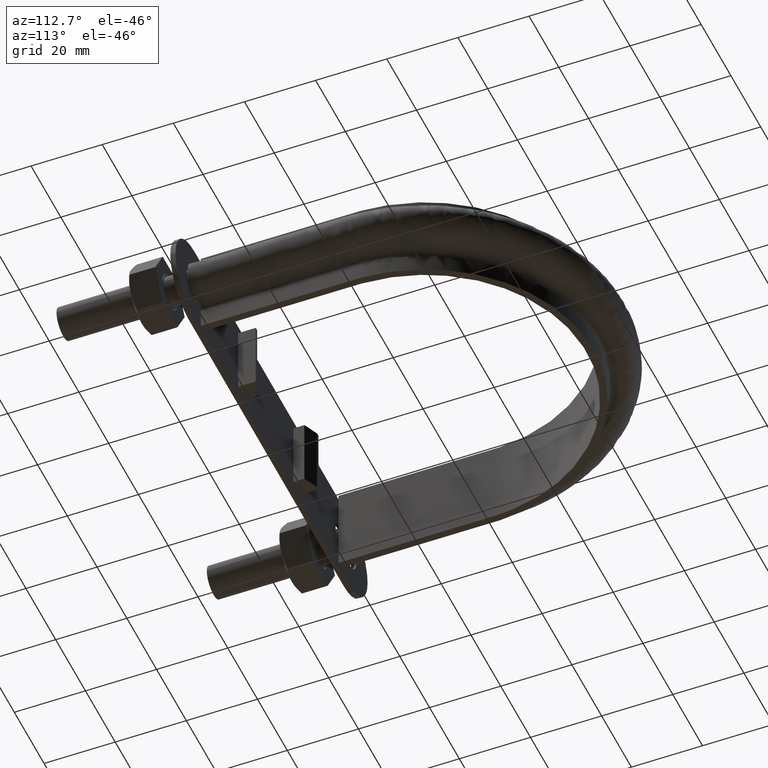
[diagram: clean part render]
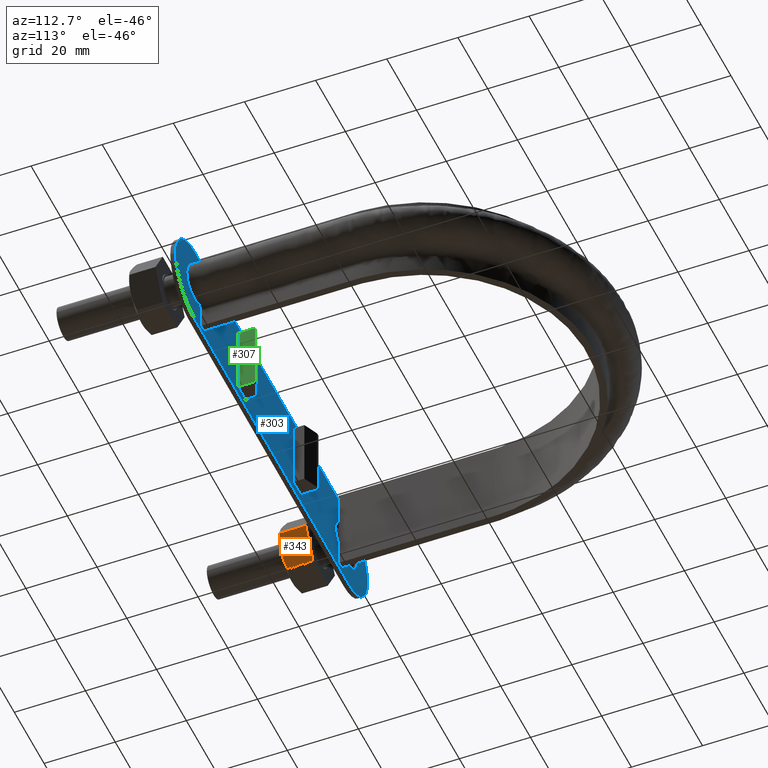
[diagram: same view with three faces highlighted in distinct colors, each labeled with its STEP entity id]
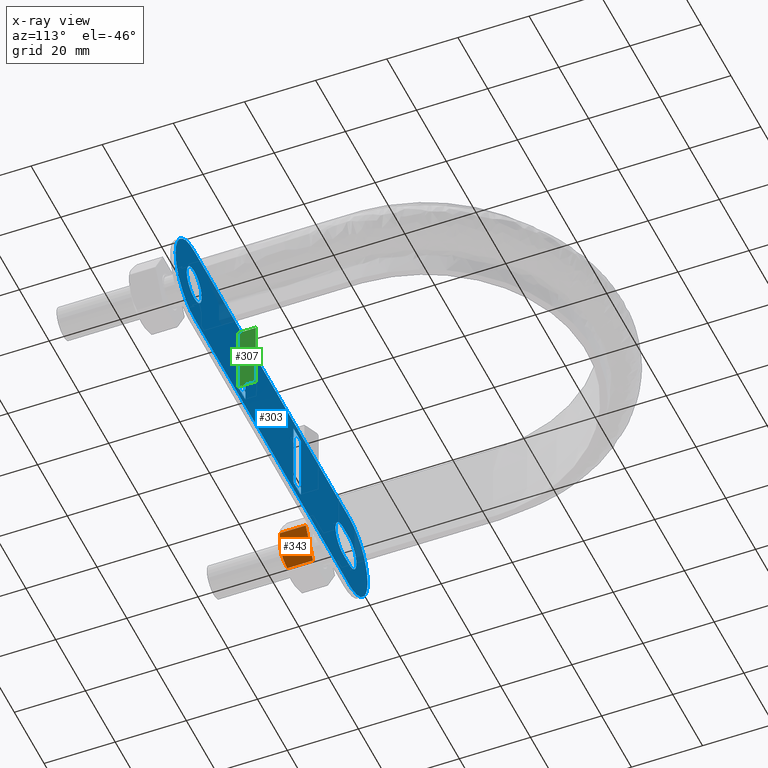
[diagram: x-ray of the same camera — body ghosted, the three highlighted faces saturated]
A machine part, auxiliary view with three faces highlighted in distinct colors.
The next image is the same camera in x-ray (body ghosted, the three faces saturated) — at least one of them is partly hidden behind the body in this view.
Their STEP definitions:

[orange] entity #343 — the highlighted planar face has unit normal (-0.866, 0, 0.5).
#343 = ADVANCED_FACE( '', ( #556 ), #557, .F. );
#556 = FACE_OUTER_BOUND( '', #1627, .T. );
#557 = PLANE( '', #1628 );
#1627 = EDGE_LOOP( '', ( #2265, #2266, #2267, #2268, #2269 ) );
#1628 = AXIS2_PLACEMENT_3D( '', #2270, #2271, #2272 );
#2265 = ORIENTED_EDGE( '', *, *, #2707, .F. );
#2266 = ORIENTED_EDGE( '', *, *, #2702, .F. );
#2267 = ORIENTED_EDGE( '', *, *, #2708, .F. );
#2268 = ORIENTED_EDGE( '', *, *, #2694, .F. );
#2269 = ORIENTED_EDGE( '', *, *, #2709, .F. );
#2270 = CARTESIAN_POINT( '', ( -40.6850454237767, 30.0000000000000, -5.75505631564511E-010 ) );
#2271 = DIRECTION( '', ( -0.866025403755121, 1.81492883553353E-016, 0.500000000050780 ) );
#2272 = DIRECTION( '', ( 0.500000000050780, -1.75487645995180E-016, 0.866025403755121 ) );
#2694 = EDGE_CURVE( '', #3044, #3046, #3047, .T. );
#2702 = EDGE_CURVE( '', #3058, #3007, #3060, .T. );
#2707 = EDGE_CURVE( '', #3007, #3065, #3066, .T. );
#2708 = EDGE_CURVE( '', #3046, #3058, #3067, .F. );
#2709 = EDGE_CURVE( '', #3065, #3044, #3068, .T. );
#3007 = VERTEX_POINT( '', #3743 );
#3044 = VERTEX_POINT( '', #3798 );
#3046 = VERTEX_POINT( '', #3800 );
#3047 = LINE( '', #3801, #3802 );
#3058 = VERTEX_POINT( '', #3823 );
#3060 = B_SPLINE_CURVE_WITH_KNOTS( '', 3, ( #3825, #3826, #3827, #3828, #3829, #3830 ), .UNSPECIFIED., .F., .F., ( 4, 2, 4 ), ( 4.83064900409132E-007, 0.00246777364959049, 0.00493506423428057 ), .UNSPECIFIED. );
#3065 = VERTEX_POINT( '', #3847 );
#3066 = B_SPLINE_CURVE_WITH_KNOTS( '', 3, ( #3848, #3849, #3850, #3851, #3852, #3853, #3854, #3855 ), .UNSPECIFIED., .F., .F., ( 4, 2, 2, 4 ), ( 0.00493506423428057, 0.00616384870526269, 0.00739263317624481, 0.00985020211820904 ), .UNSPECIFIED. );
#3067 = LINE( '', #3856, #3857 );
#3068 = LINE( '', #3858, #3859 );
#3743 = CARTESIAN_POINT( '', ( -43.1387840680822, 22.0000000000010, -4.25000000043123 ) );
#3798 = CARTESIAN_POINT( '', ( -40.7000343881827, 30.0000000000000, -0.0259616484760055 ) );
#3800 = CARTESIAN_POINT( '', ( -45.5775337479817, 30.0000000000000, -8.47403835238645 ) );
#3801 = CARTESIAN_POINT( '', ( -45.5887840683314, 30.0000000000000, -8.49352447883092 ) );
#3802 = VECTOR( '', #4304, 1000.00000000005 );
#3823 = CARTESIAN_POINT( '', ( -45.5775337479817, 22.7505553499474, -8.47403835238645 ) );
#3825 = CARTESIAN_POINT( '', ( -45.5775337479807, 22.7505553499478, -8.47403835238694 ) );
#3826 = CARTESIAN_POINT( '', ( -45.1784813836594, 22.5212203171290, -7.78285938259543 ) );
#3827 = CARTESIAN_POINT( '', ( -44.7765469153766, 22.3324525365453, -7.08668846231079 ) );
#3828 = CARTESIAN_POINT( '', ( -43.9644013768935, 22.0714148540599, -5.68001112670813 ) );
#3829 = CARTESIAN_POINT( '', ( -43.5541295597448, 22.0000000000013, -4.96939949458919 ) );
#3830 = CARTESIAN_POINT( '', ( -43.1387840680817, 22.0000000000013, -4.25000000043147 ) );
#3847 = CARTESIAN_POINT( '', ( -40.7000343881827, 22.7505553499474, -0.0259616484760059 ) );
#3848 = CARTESIAN_POINT( '', ( -43.1387840680817, 22.0000000000013, -4.25000000043147 ) );
#3849 = CARTESIAN_POINT( '', ( -42.9319295964540, 22.0000000000013, -3.89171754584802 ) );
#3850 = CARTESIAN_POINT( '', ( -42.7240406053259, 22.0177112081776, -3.53164325092864 ) );
#3851 = CARTESIAN_POINT( '', ( -42.3127840794867, 22.0863021936225, -2.81932605332737 ) );
#3852 = CARTESIAN_POINT( '', ( -42.1085229010856, 22.1371116504207, -2.46553531437069 ) );
#3853 = CARTESIAN_POINT( '', ( -41.4993495050818, 22.3331494013925, -1.41041604201564 ) );
#3854 = CARTESIAN_POINT( '', ( -41.0980340353299, 22.5218253127368, -0.715317258636198 ) );
#3855 = CARTESIAN_POINT( '', ( -40.7000343881827, 22.7505553499478, -0.0259616484760586 ) );
#3856 = CARTESIAN_POINT( '', ( -45.5775337479817, 30.0000000000000, -8.47403835238645 ) );
#3857 = VECTOR( '', #4319, 999.999999999958 );
#3858 = CARTESIAN_POINT( '', ( -40.7000343881827, 30.0000000000000, -0.0259616484760072 ) );
#3859 = VECTOR( '', #4320, 999.999999999958 );
#4304 = DIRECTION( '', ( -0.500000000050875, 1.75487645995200E-016, -0.866025403755066 ) );
#4319 = DIRECTION( '', ( 2.44921270764475E-016, 1.00000000000000, 6.12303176911189E-017 ) );
#4320 = DIRECTION( '', ( 2.44921270764475E-016, 1.00000000000000, 6.12303176911189E-017 ) );

[blue] entity #303 — the highlighted planar face has unit normal (-0, 1, -0).
#303 = ADVANCED_FACE( '', ( #467, #468, #469, #470, #471 ), #472, .T. );
#467 = FACE_BOUND( '', #1538, .T. );
#468 = FACE_OUTER_BOUND( '', #1539, .T. );
#469 = FACE_BOUND( '', #1540, .T. );
#470 = FACE_BOUND( '', #1541, .T. );
#471 = FACE_BOUND( '', #1542, .T. );
#472 = PLANE( '', #1543 );
#1538 = EDGE_LOOP( '', ( #1957, #1958, #1959, #1960 ) );
#1539 = EDGE_LOOP( '', ( #1961, #1962, #1963, #1964, #1965, #1966 ) );
#1540 = EDGE_LOOP( '', ( #1967 ) );
#1541 = EDGE_LOOP( '', ( #1968, #1969, #1970, #1971 ) );
#1542 = EDGE_LOOP( '', ( #1972, #1973, #1974, #1975 ) );
#1543 = AXIS2_PLACEMENT_3D( '', #1976, #1977, #1978 );
#1957 = ORIENTED_EDGE( '', *, *, #2613, .T. );
#1958 = ORIENTED_EDGE( '', *, *, #2614, .T. );
#1959 = ORIENTED_EDGE( '', *, *, #2615, .F. );
#1960 = ORIENTED_EDGE( '', *, *, #2616, .F. );
#1961 = ORIENTED_EDGE( '', *, *, #2600, .T. );
#1962 = ORIENTED_EDGE( '', *, *, #2617, .T. );
#1963 = ORIENTED_EDGE( '', *, *, #2618, .T. );
#1964 = ORIENTED_EDGE( '', *, *, #2619, .T. );
#1965 = ORIENTED_EDGE( '', *, *, #2620, .T. );
#1966 = ORIENTED_EDGE( '', *, *, #2621, .T. );
#1967 = ORIENTED_EDGE( '', *, *, #2622, .F. );
#1968 = ORIENTED_EDGE( '', *, *, #2623, .F. );
#1969 = ORIENTED_EDGE( '', *, *, #2610, .F. );
#1970 = ORIENTED_EDGE( '', *, *, #2624, .F. );
#1971 = ORIENTED_EDGE( '', *, *, #2625, .F. );
#1972 = ORIENTED_EDGE( '', *, *, #2626, .F. );
#1973 = ORIENTED_EDGE( '', *, *, #2627, .T. );
#1974 = ORIENTED_EDGE( '', *, *, #2628, .T. );
#1975 = ORIENTED_EDGE( '', *, *, #2629, .F. );
#1976 = CARTESIAN_POINT( '', ( -53.5000000000000, 36.7999999999975, 3.14283640215862E-009 ) );
#1977 = DIRECTION( '', ( -4.70212120677648E-014, 1.00000000000000, -6.03659968900138E-014 ) );
#1978 = DIRECTION( '', ( 5.87450643685463E-011, 6.03659968927761E-014, 1.00000000000000 ) );
#2600 = EDGE_CURVE( '', #2889, #2890, #2891, .T. );
#2610 = EDGE_CURVE( '', #2905, #2906, #2907, .T. );
#2613 = EDGE_CURVE( '', #2910, #2911, #2912, .T. );
#2614 = EDGE_CURVE( '', #2911, #2913, #2914, .T. );
#2615 = EDGE_CURVE( '', #2915, #2913, #2916, .T. );
#2616 = EDGE_CURVE( '', #2910, #2915, #2917, .T. );
#2617 = EDGE_CURVE( '', #2890, #2918, #2919, .T. );
#2618 = EDGE_CURVE( '', #2918, #2920, #2921, .T. );
#2619 = EDGE_CURVE( '', #2920, #2922, #2923, .T. );
#2620 = EDGE_CURVE( '', #2922, #2924, #2925, .T. );
#2621 = EDGE_CURVE( '', #2924, #2889, #2926, .T. );
#2622 = EDGE_CURVE( '', #2927, #2927, #2928, .T. );
#2623 = EDGE_CURVE( '', #2906, #2929, #2930, .F. );
#2624 = EDGE_CURVE( '', #2931, #2905, #2932, .F. );
#2625 = EDGE_CURVE( '', #2929, #2931, #2933, .T. );
#2626 = EDGE_CURVE( '', #2934, #2935, #2936, .T. );
#2627 = EDGE_CURVE( '', #2934, #2937, #2938, .T. );
#2628 = EDGE_CURVE( '', #2937, #2939, #2940, .T. );
#2629 = EDGE_CURVE( '', #2935, #2939, #2941, .T. );
#2889 = VERTEX_POINT( '', #3553 );
#2890 = VERTEX_POINT( '', #3554 );
#2891 = CIRCLE( '', #3555, 12.5000000000000 );
#2905 = VERTEX_POINT( '', #3578 );
#2906 = VERTEX_POINT( '', #3579 );
#2907 = LINE( '', #3580, #3581 );
#2910 = VERTEX_POINT( '', #3586 );
#2911 = VERTEX_POINT( '', #3587 );
#2912 = LINE( '', #3588, #3589 );
#2913 = VERTEX_POINT( '', #3590 );
#2914 = LINE( '', #3591, #3592 );
#2915 = VERTEX_POINT( '', #3593 );
#2916 = LINE( '', #3594, #3595 );
#2917 = LINE( '', #3596, #3597 );
#2918 = VERTEX_POINT( '', #3598 );
#2919 = LINE( '', #3599, #3600 );
#2920 = VERTEX_POINT( '', #3601 );
#2921 = CIRCLE( '', #3602, 12.5000000000000 );
#2922 = VERTEX_POINT( '', #3603 );
#2923 = CIRCLE( '', #3604, 12.5000000000000 );
#2924 = VERTEX_POINT( '', #3605 );
#2925 = LINE( '', #3606, #3607 );
#2926 = CIRCLE( '', #3608, 12.5000000000000 );
#2927 = VERTEX_POINT( '', #3609 );
#2928 = CIRCLE( '', #3610, 5.00000000000000 );
#2929 = VERTEX_POINT( '', #3611 );
#2930 = CIRCLE( '', #3612, 5.00000000000000 );
#2931 = VERTEX_POINT( '', #3613 );
#2932 = CIRCLE( '', #3614, 5.00000000000000 );
#2933 = LINE( '', #3615, #3616 );
#2934 = VERTEX_POINT( '', #3617 );
#2935 = VERTEX_POINT( '', #3618 );
#2936 = LINE( '', #3619, #3620 );
#2937 = VERTEX_POINT( '', #3621 );
#2938 = LINE( '', #3622, #3623 );
#2939 = VERTEX_POINT( '', #3624 );
#2940 = LINE( '', #3625, #3626 );
#2941 = LINE( '', #3627, #3628 );
#3553 = CARTESIAN_POINT( '', ( -66.0000000000000, 36.7999999999969, 3.87715317621240E-009 ) );
#3554 = CARTESIAN_POINT( '', ( -53.4999999992657, 36.7999999999983, 12.5000000031428 ) );
#3555 = AXIS2_PLACEMENT_3D( '', #4166, #4167, #4168 );
#3578 = CARTESIAN_POINT( '', ( -49.5000000002938, 36.7999999999974, -4.99999999709215 ) );
#3579 = CARTESIAN_POINT( '', ( -53.5000000002938, 36.7999999999972, -4.99999999685717 ) );
#3580 = CARTESIAN_POINT( '', ( -53.5000000002938, 36.7999999999972, -4.99999999685717 ) );
#3581 = VECTOR( '', #4178, 1000.00000000000 );
#3586 = CARTESIAN_POINT( '', ( -21.1000000005873, 36.7999999999984, -9.99999999876051 ) );
#3587 = CARTESIAN_POINT( '', ( -16.1000000005872, 36.7999999999987, -9.99999999905423 ) );
#3588 = CARTESIAN_POINT( '', ( -21.1000000005873, 36.7999999999984, -9.99999999876051 ) );
#3589 = VECTOR( '', #4181, 1000.00000000000 );
#3590 = CARTESIAN_POINT( '', ( -16.0999999994123, 36.7999999999999, 10.0000000009458 ) );
#3591 = CARTESIAN_POINT( '', ( -16.1000000005872, 36.7999999999987, -9.99999999905423 ) );
#3592 = VECTOR( '', #4182, 1000.00000000000 );
#3593 = CARTESIAN_POINT( '', ( -21.0999999994124, 36.7999999999996, 10.0000000012395 ) );
#3594 = CARTESIAN_POINT( '', ( -21.0999999994124, 36.7999999999996, 10.0000000012395 ) );
#3595 = VECTOR( '', #4183, 1000.00000000000 );
#3596 = CARTESIAN_POINT( '', ( -21.1000000005873, 36.7999999999984, -9.99999999876051 ) );
#3597 = VECTOR( '', #4184, 1000.00000000000 );
#3598 = CARTESIAN_POINT( '', ( 50.5000000007343, 36.8000000000032, 12.4999999970333 ) );
#3599 = CARTESIAN_POINT( '', ( -53.4999999992657, 36.7999999999983, 12.5000000031428 ) );
#3600 = VECTOR( '', #4185, 1000.00000000000 );
#3601 = CARTESIAN_POINT( '', ( 63.0000000000000, 36.8000000000030, -3.70096359677702E-009 ) );
#3602 = AXIS2_PLACEMENT_3D( '', #4186, #4187, #4188 );
#3603 = CARTESIAN_POINT( '', ( 50.4999999992657, 36.8000000000016, -12.5000000029666 ) );
#3604 = AXIS2_PLACEMENT_3D( '', #4189, #4190, #4191 );
#3605 = CARTESIAN_POINT( '', ( -53.5000000007343, 36.7999999999968, -12.4999999968572 ) );
#3606 = CARTESIAN_POINT( '', ( 50.4999999992657, 36.8000000000016, -12.5000000029666 ) );
#3607 = VECTOR( '', #4192, 1000.00000000000 );
#3608 = AXIS2_PLACEMENT_3D( '', #4193, #4194, #4195 );
#3609 = CARTESIAN_POINT( '', ( 55.5000000000000, 36.8000100000026, -3.26038255351049E-009 ) );
#3610 = AXIS2_PLACEMENT_3D( '', #4196, #4197, #4198 );
#3611 = CARTESIAN_POINT( '', ( -53.4999999997063, 36.7999999999978, 5.00000000314282 ) );
#3612 = AXIS2_PLACEMENT_3D( '', #4199, #4200, #4201 );
#3613 = CARTESIAN_POINT( '', ( -49.4999999997063, 36.7999999999980, 5.00000000290784 ) );
#3614 = AXIS2_PLACEMENT_3D( '', #4202, #4203, #4204 );
#3615 = CARTESIAN_POINT( '', ( -49.4999999997063, 36.7999999999980, 5.00000000290784 ) );
#3616 = VECTOR( '', #4205, 1000.00000000000 );
#3617 = CARTESIAN_POINT( '', ( 16.0999999994131, 36.8000000000002, -10.0000000009458 ) );
#3618 = CARTESIAN_POINT( '', ( 16.1000000005880, 36.8000000000014, 9.99999999905417 ) );
#3619 = CARTESIAN_POINT( '', ( 16.0999999994131, 36.8000000000002, -10.0000000009458 ) );
#3620 = VECTOR( '', #4206, 1000.00000000000 );
#3621 = CARTESIAN_POINT( '', ( 21.0999999994131, 36.8000000000004, -10.0000000012396 ) );
#3622 = CARTESIAN_POINT( '', ( 16.0999999994130, 36.8000000000002, -10.0000000009458 ) );
#3623 = VECTOR( '', #4207, 1000.00000000000 );
#3624 = CARTESIAN_POINT( '', ( 21.1000000005880, 36.8000000000016, 9.99999999876045 ) );
#3625 = CARTESIAN_POINT( '', ( 21.0999999994131, 36.8000000000004, -10.0000000012396 ) );
#3626 = VECTOR( '', #4208, 1000.00000000000 );
#3627 = CARTESIAN_POINT( '', ( 16.1000000005879, 36.8000000000014, 9.99999999905417 ) );
#3628 = VECTOR( '', #4209, 1000.00000000000 );
#4166 = CARTESIAN_POINT( '', ( -53.5000000000000, 36.7999999999975, 3.14283640215862E-009 ) );
#4167 = DIRECTION( '', ( -4.70212120677648E-014, 1.00000000000000, -6.03659968900138E-014 ) );
#4168 = DIRECTION( '', ( -1.00000000000000, -4.70212120642186E-014, 5.87449255906682E-011 ) );
#4178 = DIRECTION( '', ( -1.00000000000000, -4.70212120642186E-014, 5.87450643685463E-011 ) );
#4181 = DIRECTION( '', ( 1.00000000000000, 4.70212120642186E-014, -5.87450643685463E-011 ) );
#4182 = DIRECTION( '', ( 5.87449371121504E-011, 6.06092387437148E-014, 1.00000000000000 ) );
#4183 = DIRECTION( '', ( 1.00000000000000, 4.70212120642186E-014, -5.87450643685463E-011 ) );
#4184 = DIRECTION( '', ( 5.87449371121504E-011, 6.06092387437148E-014, 1.00000000000000 ) );
#4185 = DIRECTION( '', ( 1.00000000000000, 4.70212120642186E-014, -5.87450643685463E-011 ) );
#4186 = CARTESIAN_POINT( '', ( 50.5000000000000, 36.8000000000024, -2.96665029217019E-009 ) );
#4187 = DIRECTION( '', ( -4.70212120677648E-014, 1.00000000000000, -6.03659968900138E-014 ) );
#4188 = DIRECTION( '', ( 5.87450643685463E-011, 6.03659968927761E-014, 1.00000000000000 ) );
#4189 = CARTESIAN_POINT( '', ( 50.5000000000000, 36.8000000000024, -2.96664682272324E-009 ) );
#4190 = DIRECTION( '', ( -4.70212120677648E-014, 1.00000000000000, -6.03659968900138E-014 ) );
#4191 = DIRECTION( '', ( 1.00000000000000, 4.70212120642186E-014, -5.87449255906682E-011 ) );
#4192 = DIRECTION( '', ( -1.00000000000000, -4.70212120642186E-014, 5.87450643685463E-011 ) );
#4193 = CARTESIAN_POINT( '', ( -53.5000000000000, 36.7999999999975, 3.14283987160557E-009 ) );
#4194 = DIRECTION( '', ( -4.70212120677648E-014, 1.00000000000000, -6.03659968900138E-014 ) );
#4195 = DIRECTION( '', ( -5.87450643685463E-011, -6.03659968927761E-014, -1.00000000000000 ) );
#4196 = CARTESIAN_POINT( '', ( 50.5000000000000, 36.8000100000024, -2.96665723166776E-009 ) );
#4197 = DIRECTION( '', ( -4.70212120677648E-014, 1.00000000000000, -6.03659968900138E-014 ) );
#4198 = DIRECTION( '', ( 1.00000000000000, 4.70212120642186E-014, -5.87450643685463E-011 ) );
#4199 = CARTESIAN_POINT( '', ( -53.5000000000001, 36.7999999999975, 3.14282425909429E-009 ) );
#4200 = DIRECTION( '', ( 4.70212120677648E-014, -1.00000000000000, 6.03659968900138E-014 ) );
#4201 = DIRECTION( '', ( -1.00000000000000, -4.70212120642186E-014, 5.87450643685463E-011 ) );
#4202 = CARTESIAN_POINT( '', ( -49.5000000000000, 36.7999999999977, 2.90784400162011E-009 ) );
#4203 = DIRECTION( '', ( 4.70212120677648E-014, -1.00000000000000, 6.03659968900138E-014 ) );
#4204 = DIRECTION( '', ( -1.00000000000000, -4.70212120642186E-014, 5.87450643685463E-011 ) );
#4205 = DIRECTION( '', ( 1.00000000000000, 4.70212120642186E-014, -5.87450643685463E-011 ) );
#4206 = DIRECTION( '', ( 5.87449371121504E-011, 6.06092387437148E-014, 1.00000000000000 ) );
#4207 = DIRECTION( '', ( 1.00000000000000, 4.70212120642186E-014, -5.87450643685463E-011 ) );
#4208 = DIRECTION( '', ( 5.87449371121504E-011, 6.06092387437148E-014, 1.00000000000000 ) );
#4209 = DIRECTION( '', ( 1.00000000000000, 4.70212120642186E-014, -5.87450643685463E-011 ) );

[green] entity #307 — the highlighted planar face has unit normal (1, 0, -0).
#307 = ADVANCED_FACE( '', ( #479 ), #480, .T. );
#479 = FACE_OUTER_BOUND( '', #1550, .T. );
#480 = PLANE( '', #1551 );
#1550 = EDGE_LOOP( '', ( #2000, #2001, #2002, #2003 ) );
#1551 = AXIS2_PLACEMENT_3D( '', #2004, #2005, #2006 );
#2000 = ORIENTED_EDGE( '', *, *, #2632, .F. );
#2001 = ORIENTED_EDGE( '', *, *, #2628, .F. );
#2002 = ORIENTED_EDGE( '', *, *, #2633, .T. );
#2003 = ORIENTED_EDGE( '', *, *, #2634, .T. );
#2004 = CARTESIAN_POINT( '', ( 21.0999999994131, 36.8000000000004, -10.0000000012396 ) );
#2005 = DIRECTION( '', ( 1.00000000000000, 4.70212120642186E-014, -5.87449371121504E-011 ) );
#2006 = DIRECTION( '', ( 4.70212120677791E-014, -1.00000000000000, 6.06092387409525E-014 ) );
#2628 = EDGE_CURVE( '', #2937, #2939, #2940, .T. );
#2632 = EDGE_CURVE( '', #2939, #2944, #2945, .T. );
#2633 = EDGE_CURVE( '', #2937, #2946, #2947, .T. );
#2634 = EDGE_CURVE( '', #2946, #2944, #2948, .T. );
#2937 = VERTEX_POINT( '', #3621 );
#2939 = VERTEX_POINT( '', #3624 );
#2940 = LINE( '', #3625, #3626 );
#2944 = VERTEX_POINT( '', #3633 );
#2945 = LINE( '', #3634, #3635 );
#2946 = VERTEX_POINT( '', #3636 );
#2947 = LINE( '', #3637, #3638 );
#2948 = LINE( '', #3639, #3640 );
#3621 = CARTESIAN_POINT( '', ( 21.0999999994131, 36.8000000000004, -10.0000000012396 ) );
#3624 = CARTESIAN_POINT( '', ( 21.1000000005880, 36.8000000000016, 9.99999999876045 ) );
#3625 = CARTESIAN_POINT( '', ( 21.0999999994131, 36.8000000000004, -10.0000000012396 ) );
#3626 = VECTOR( '', #4208, 1000.00000000000 );
#3633 = CARTESIAN_POINT( '', ( 21.1000000005878, 41.8000000000018, 9.99999999876015 ) );
#3634 = CARTESIAN_POINT( '', ( 21.1000000005880, 36.8000000000016, 9.99999999876045 ) );
#3635 = VECTOR( '', #4212, 1000.00000000000 );
#3636 = CARTESIAN_POINT( '', ( 21.0999999994129, 41.8000000000006, -10.0000000012399 ) );
#3637 = CARTESIAN_POINT( '', ( 21.0999999994131, 36.8000000000004, -10.0000000012396 ) );
#3638 = VECTOR( '', #4213, 1000.00000000000 );
#3639 = CARTESIAN_POINT( '', ( 21.0999999994129, 41.8000000000006, -10.0000000012399 ) );
#3640 = VECTOR( '', #4214, 1000.00000000000 );
#4208 = DIRECTION( '', ( 5.87449371121504E-011, 6.06092387437148E-014, 1.00000000000000 ) );
#4212 = DIRECTION( '', ( -4.70212120677779E-014, 1.00000000000000, -6.05881125719571E-014 ) );
#4213 = DIRECTION( '', ( -4.70212120677779E-014, 1.00000000000000, -6.05881125719571E-014 ) );
#4214 = DIRECTION( '', ( 5.87449371121504E-011, 6.06092387437148E-014, 1.00000000000000 ) );